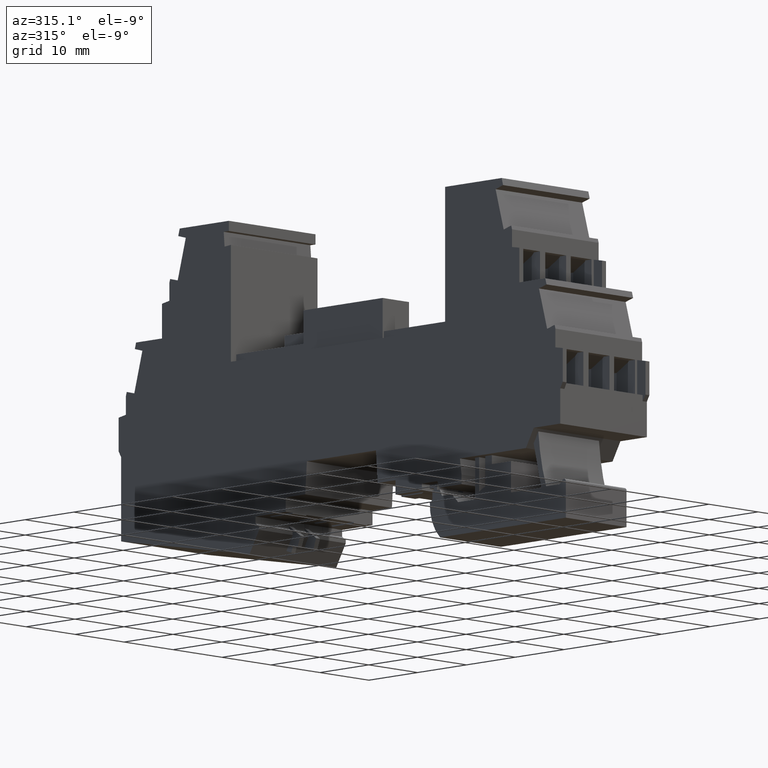
[diagram: clean part render]
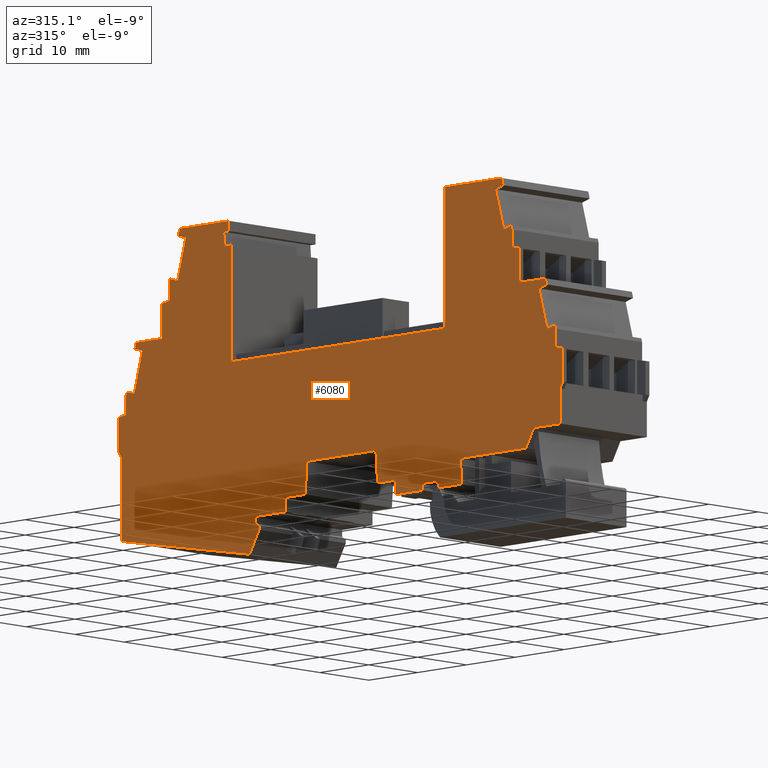
[diagram: same view with one face highlighted and labeled with its STEP entity id]
A machine part, auxiliary view. The second image highlights one B-rep face of the part: STEP entity #6080.
In plain terms, the highlighted planar face has unit normal (-1, -0, -0).
Its self-contained STEP definition (entity closure, byte-faithful):
#410=CARTESIAN_POINT('',(175.775787432851,38.0748719555399,
-1.11334144388233));
#420=DIRECTION('',(-1.13026406892651E-23,-4.41130550527766E-11,-1.));
#430=DIRECTION('',(1.,1.56403761487863E-19,-1.13026475887129E-23));
#440=AXIS2_PLACEMENT_3D('',#410,#420,#430);
#450=PLANE('',#440);
#460=CARTESIAN_POINT('',(161.653020459409,7.14242861452707,
-1.1133414425178));
#470=DIRECTION('',(1.56403753782132E-19,-1.,4.41130550527766E-11));
#480=VECTOR('',#470,1.);
#490=LINE('',#460,#480);
#500=CARTESIAN_POINT('',(161.653020459409,45.4024770615774,
-1.11334144420557));
#510=VERTEX_POINT('',#500);
#520=CARTESIAN_POINT('',(161.653020459409,28.2748719555886,
-1.11334144345002));
#530=VERTEX_POINT('',#520);
#540=EDGE_CURVE('',#510,#530,#490,.T.);
#550=ORIENTED_EDGE('',*,*,#540,.F.);
#560=CARTESIAN_POINT('',(192.854165374852,28.2748719555886,
-1.11334144345002));
#570=DIRECTION('',(-1.,2.48285112233651E-16,1.12832605431061E-23));
#580=VECTOR('',#570,1.);
#590=LINE('',#560,#580);
#600=CARTESIAN_POINT('',(117.753020248102,28.2748719555887,
-1.11334144345002));
#610=VERTEX_POINT('',#600);
#620=EDGE_CURVE('',#530,#610,#590,.T.);
#630=ORIENTED_EDGE('',*,*,#620,.F.);
#640=CARTESIAN_POINT('',(117.753020248096,7.14242861452707,
-1.11334144251781));
#650=DIRECTION('',(2.56261158126899E-13,1.,-4.41130550527766E-11));
#660=VECTOR('',#650,1.);
#670=LINE('',#640,#660);
#680=CARTESIAN_POINT('',(117.753020248107,48.9738971837701,
-1.11334144436312));
#690=VERTEX_POINT('',#680);
#700=EDGE_CURVE('',#610,#690,#670,.T.);
#710=ORIENTED_EDGE('',*,*,#700,.F.);
#720=CARTESIAN_POINT('',(192.854165374852,48.9738971837701,
-1.11334144436312));
#730=DIRECTION('',(-1.,-1.56366765235547E-19,1.12961852401773E-23));
#740=VECTOR('',#730,1.);
#750=LINE('',#720,#740);
#760=CARTESIAN_POINT('',(106.15275358152,48.9738971837701,
-1.11334144436312));
#770=VERTEX_POINT('',#760);
#780=EDGE_CURVE('',#690,#770,#750,.T.);
#790=ORIENTED_EDGE('',*,*,#780,.F.);
#800=CARTESIAN_POINT('',(98.5389253561139,21.1424286096103,
-1.11334144313539));
#810=DIRECTION('',(0.263873049965359,0.964557418457802,
-4.25495568743656E-11));
#820=VECTOR('',#810,1.);
#830=LINE('',#800,#820);
#840=CARTESIAN_POINT('',(105.859496458614,47.9019296848093,
-1.11334144431583));
#850=VERTEX_POINT('',#840);
#860=EDGE_CURVE('',#850,#770,#830,.T.);
#870=ORIENTED_EDGE('',*,*,#860,.T.);
#880=CARTESIAN_POINT('',(171.854165368061,29.8478312627266,
-1.11334144351941));
#890=DIRECTION('',(0.964557418457813,-0.26387304996532,
1.16402649562814E-11));
#900=VECTOR('',#890,1.);
#910=LINE('',#880,#900);
#920=CARTESIAN_POINT('',(107.402788328871,47.4797328046665,
-1.11334144429721));
#930=VERTEX_POINT('',#920);
#940=EDGE_CURVE('',#850,#930,#910,.T.);
#950=ORIENTED_EDGE('',*,*,#940,.F.);
#960=CARTESIAN_POINT('',(100.197717222867,21.1424286096103,
-1.11334144313539));
#970=DIRECTION('',(-0.263873049965295,-0.964557418457819,
4.25495846299392E-11));
#980=VECTOR('',#970,1.);
#990=LINE('',#960,#980);
#1000=CARTESIAN_POINT('',(105.733791287841,41.3789071329206,
-1.11334144402808));
#1010=VERTEX_POINT('',#1000);
#1020=EDGE_CURVE('',#930,#1010,#990,.T.);
#1030=ORIENTED_EDGE('',*,*,#1020,.F.);
#1040=CARTESIAN_POINT('',(171.854165368061,23.2904196675485,
-1.11334144323014));
#1050=DIRECTION('',(-0.964557418457773,0.263873049965463,
-1.16402372007138E-11));
#1060=VECTOR('',#1050,1.);
#1070=LINE('',#1040,#1060);
#1080=CARTESIAN_POINT('',(104.190499418309,41.8011040128653,
-1.1133414440467));
#1090=VERTEX_POINT('',#1080);
#1100=EDGE_CURVE('',#1010,#1090,#1070,.T.);
#1110=ORIENTED_EDGE('',*,*,#1100,.F.);
#1120=CARTESIAN_POINT('',(98.5389253568921,21.1424286096103,
-1.11334144313539));
#1130=DIRECTION('',(-0.263873049965441,-0.964557418457779,
4.25495846299438E-11));
#1140=VECTOR('',#1130,1.);
#1150=LINE('',#1120,#1140);
#1160=CARTESIAN_POINT('',(104.030253066509,41.2153420056081,
-1.11334144402086));
#1170=VERTEX_POINT('',#1160);
#1180=EDGE_CURVE('',#1090,#1170,#1150,.T.);
#1190=ORIENTED_EDGE('',*,*,#1180,.F.);
#1200=CARTESIAN_POINT('',(104.030253066509,21.1424286096103,
-1.11334144313539));
#1210=DIRECTION('',(1.56403759803267E-19,-1.,4.41130550527766E-11));
#1220=VECTOR('',#1210,1.);
#1230=LINE('',#1200,#1220);
#1240=CARTESIAN_POINT('',(104.030253066509,38.6248719555593,
-1.11334144390659));
#1250=VERTEX_POINT('',#1240);
#1260=EDGE_CURVE('',#1170,#1250,#1230,.T.);
#1270=ORIENTED_EDGE('',*,*,#1260,.F.);
#1280=CARTESIAN_POINT('',(180.754165368086,52.1533677598375,
-1.11334144450337));
#1290=DIRECTION('',(-0.984807753012208,-0.173648177666932,
7.66016047147688E-12));
#1300=VECTOR('',#1290,1.);
#1310=LINE('',#1280,#1300);
#1320=CARTESIAN_POINT('',(102.530253066631,38.3603814845181,
-1.11334144389492));
#1330=VERTEX_POINT('',#1320);
#1340=EDGE_CURVE('',#1250,#1330,#1310,.T.);
#1350=ORIENTED_EDGE('',*,*,#1340,.F.);
#1360=CARTESIAN_POINT('',(102.530253066631,36.8424286095952,
-1.11334144382796));
#1370=DIRECTION('',(1.20220234940447E-15,-1.,4.41130550527766E-11));
#1380=VECTOR('',#1370,1.);
#1390=LINE('',#1360,#1380);
#1400=CARTESIAN_POINT('',(102.530253066631,33.2748719555399,
-1.11334144367058));
#1410=VERTEX_POINT('',#1400);
#1420=EDGE_CURVE('',#1330,#1410,#1390,.T.);
#1430=ORIENTED_EDGE('',*,*,#1420,.F.);
#1440=CARTESIAN_POINT('',(171.854165368061,33.2748719555399,
-1.11334144367059));
#1450=DIRECTION('',(-1.,-1.5640375923075E-19,1.12961852401773E-23));
#1460=VECTOR('',#1450,1.);
#1470=LINE('',#1440,#1460);
#1480=CARTESIAN_POINT('',(97.2119848932176,33.2748719555399,
-1.11334144367058));
#1490=VERTEX_POINT('',#1480);
#1500=EDGE_CURVE('',#1410,#1490,#1470,.T.);
#1510=ORIENTED_EDGE('',*,*,#1500,.F.);
#1520=CARTESIAN_POINT('',(93.8929239768224,21.1424286096103,
-1.1133414431354));
#1530=DIRECTION('',(-0.26387304996536,-0.964557418457802,
4.25495846299412E-11));
#1540=VECTOR('',#1530,1.);
#1550=LINE('',#1520,#1540);
#1560=CARTESIAN_POINT('',(96.9594964593394,32.3519296846108,
-1.11334144362987));
#1570=VERTEX_POINT('',#1560);
#1580=EDGE_CURVE('',#1490,#1570,#1550,.T.);
#1590=ORIENTED_EDGE('',*,*,#1580,.F.);
#1600=CARTESIAN_POINT('',(171.854165368061,11.8630667792952,
-1.11334144272605));
#1610=DIRECTION('',(-0.964557418457813,0.26387304996532,
-1.16402649562814E-11));
#1620=VECTOR('',#1610,1.);
#1630=LINE('',#1600,#1620);
#1640=CARTESIAN_POINT('',(98.5027883288711,31.9297328046665,
-1.11334144361125));
#1650=VERTEX_POINT('',#1640);
#1660=EDGE_CURVE('',#1650,#1570,#1630,.T.);
#1670=ORIENTED_EDGE('',*,*,#1660,.T.);
#1680=CARTESIAN_POINT('',(95.5517158427942,21.1424286096103,
-1.1133414431354));
#1690=DIRECTION('',(-0.263873049965295,-0.964557418457819,
4.25495846299392E-11));
#1700=VECTOR('',#1690,1.);
#1710=LINE('',#1680,#1700);
#1720=CARTESIAN_POINT('',(96.8337912878407,25.8289071329206,
-1.11334144334212));
#1730=VERTEX_POINT('',#1720);
#1740=EDGE_CURVE('',#1650,#1730,#1710,.T.);
#1750=ORIENTED_EDGE('',*,*,#1740,.F.);
#1760=CARTESIAN_POINT('',(171.854165368061,5.30565518411572,
-1.11334144243678));
#1770=DIRECTION('',(-0.964557418457773,0.263873049965463,
-1.16402372007138E-11));
#1780=VECTOR('',#1770,1.);
#1790=LINE('',#1760,#1780);
#1800=CARTESIAN_POINT('',(95.2904994183087,26.2511040128653,
-1.11334144336074));
#1810=VERTEX_POINT('',#1800);
#1820=EDGE_CURVE('',#1730,#1810,#1790,.T.);
#1830=ORIENTED_EDGE('',*,*,#1820,.F.);
#1840=CARTESIAN_POINT('',(93.892923976822,21.1424286096103,
-1.1133414431354));
#1850=DIRECTION('',(-0.263873049965441,-0.964557418457779,
4.25495846299438E-11));
#1860=VECTOR('',#1850,1.);
#1870=LINE('',#1840,#1860);
#1880=CARTESIAN_POINT('',(95.1302530665093,25.665342005608,
-1.11334144333491));
#1890=VERTEX_POINT('',#1880);
#1900=EDGE_CURVE('',#1810,#1890,#1870,.T.);
#1910=ORIENTED_EDGE('',*,*,#1900,.F.);
#1920=CARTESIAN_POINT('',(95.1302530665093,21.1424286096103,
-1.11334144313539));
#1930=DIRECTION('',(1.56403759803267E-19,-1.,4.41130550527766E-11));
#1940=VECTOR('',#1930,1.);
#1950=LINE('',#1920,#1940);
#1960=CARTESIAN_POINT('',(95.1302530665093,22.9248719555787,
-1.11334144321401));
#1970=VERTEX_POINT('',#1960);
#1980=EDGE_CURVE('',#1890,#1970,#1950,.T.);
#1990=ORIENTED_EDGE('',*,*,#1980,.F.);
#2000=CARTESIAN_POINT('',(171.854165368061,36.4533677598525,
-1.1133414438108));
#2010=DIRECTION('',(-0.984807753012208,-0.173648177666932,
7.66016047147688E-12));
#2020=VECTOR('',#2010,1.);
#2030=LINE('',#2000,#2020);
#2040=CARTESIAN_POINT('',(93.6302530666062,22.6603814845331,
-1.11334144320235));
#2050=VERTEX_POINT('',#2040);
#2060=EDGE_CURVE('',#1970,#2050,#2030,.T.);
#2070=ORIENTED_EDGE('',*,*,#2060,.F.);
#2080=CARTESIAN_POINT('',(93.6302530666062,21.1424286096103,
-1.1133414431354));
#2090=DIRECTION('',(1.20220234940447E-15,-1.,4.41130550527766E-11));
#2100=VECTOR('',#2090,1.);
#2110=LINE('',#2080,#2100);
#2120=CARTESIAN_POINT('',(93.6302530666062,17.7248719555886,
-1.11334144298463));
#2130=VERTEX_POINT('',#2120);
#2140=EDGE_CURVE('',#2050,#2130,#2110,.T.);
#2150=ORIENTED_EDGE('',*,*,#2140,.F.);
#2160=CARTESIAN_POINT('',(91.657125812436,21.1424286096103,
-1.11334144313539));
#2170=DIRECTION('',(0.500000000000001,-0.866025403784438,
3.82030794971771E-11));
#2180=VECTOR('',#2170,1.);
#2190=LINE('',#2160,#2180);
#2200=CARTESIAN_POINT('',(94.1530202869944,16.8194125693447,
-1.11334144294469));
#2210=VERTEX_POINT('',#2200);
#2220=EDGE_CURVE('',#2130,#2210,#2190,.T.);
#2230=ORIENTED_EDGE('',*,*,#2220,.F.);
#2240=CARTESIAN_POINT('',(94.1530202869944,21.1424286096103,
-1.11334144313539));
#2250=DIRECTION('',(1.56403759828511E-19,-1.,4.41130550527766E-11));
#2260=VECTOR('',#2250,1.);
#2270=LINE('',#2240,#2260);
#2280=CARTESIAN_POINT('',(94.1530202869944,11.6453465829026,
-1.11334144271644));
#2290=VERTEX_POINT('',#2280);
#2300=EDGE_CURVE('',#2210,#2290,#2270,.T.);
#2310=ORIENTED_EDGE('',*,*,#2300,.F.);
#2320=CARTESIAN_POINT('',(171.854165368061,11.6453465829225,
-1.11334144271645));
#2330=DIRECTION('',(-1.,-2.56158420807289E-13,2.26052951774257E-23));
#2340=VECTOR('',#2330,1.);
#2350=LINE('',#2320,#2340);
#2360=CARTESIAN_POINT('',(99.5724653276216,11.645346582904,
-1.11334144271644));
#2370=VERTEX_POINT('',#2360);
#2380=EDGE_CURVE('',#2370,#2290,#2350,.T.);
#2390=ORIENTED_EDGE('',*,*,#2380,.T.);
#2400=CARTESIAN_POINT('',(94.0893224629868,21.1424286096103,
-1.11334144313539));
#2410=DIRECTION('',(0.5,-0.866025403784439,3.82030794971771E-11));
#2420=VECTOR('',#2410,1.);
#2430=LINE('',#2400,#2420);
#2440=CARTESIAN_POINT('',(101.18635916368,8.85000046082788,
-1.11334144259313));
#2450=VERTEX_POINT('',#2440);
#2460=EDGE_CURVE('',#2370,#2450,#2430,.T.);
#2470=ORIENTED_EDGE('',*,*,#2460,.F.);
#2480=CARTESIAN_POINT('',(171.854165368061,8.85000046085151,
-1.11334144259312));
#2490=DIRECTION('',(1.,2.56108516335247E-13,-2.25988328288901E-23));
#2500=VECTOR('',#2490,1.);
#2510=LINE('',#2480,#2500);
#2520=CARTESIAN_POINT('',(114.713353248509,8.85000046083134,
-1.11334144259313));
#2530=VERTEX_POINT('',#2520);
#2540=EDGE_CURVE('',#2450,#2530,#2510,.T.);
#2550=ORIENTED_EDGE('',*,*,#2540,.F.);
#2560=CARTESIAN_POINT('',(116.440941361057,21.1424286096103,
-1.11334144313539));
#2570=DIRECTION('',(-0.139173100960066,-0.99026806874157,
4.3683736822329E-11));
#2580=VECTOR('',#2570,1.);
#2590=LINE('',#2560,#2580);
#2600=CARTESIAN_POINT('',(114.37605521281,6.45000023019994,
-1.11334144248726));
#2610=VERTEX_POINT('',#2600);
#2620=EDGE_CURVE('',#2530,#2610,#2590,.T.);
#2630=ORIENTED_EDGE('',*,*,#2620,.F.);
#2640=CARTESIAN_POINT('',(114.376055212133,41.9996467296904,
-1.11334144274779));
#2650=DIRECTION('',(-1.24743686456667E-16,-1.,4.37046590461377E-11));
#2660=VECTOR('',#2650,1.);
#2670=LINE('',#2640,#2660);
#2680=CARTESIAN_POINT('',(114.37605521281,5.04534658290805,
-1.11334144242529));
#2690=VERTEX_POINT('',#2680);
#2700=EDGE_CURVE('',#2610,#2690,#2670,.T.);
#2710=ORIENTED_EDGE('',*,*,#2700,.F.);
#2720=CARTESIAN_POINT('',(171.854165368061,5.04534658290804,
-1.1133414424253));
#2730=DIRECTION('',(-1.,5.53547833219056E-17,1.13026475887129E-23));
#2740=VECTOR('',#2730,1.);
#2750=LINE('',#2720,#2740);
#2760=CARTESIAN_POINT('',(118.904710953723,5.04534658290804,
-1.11334144242529));
#2770=VERTEX_POINT('',#2760);
#2780=EDGE_CURVE('',#2770,#2690,#2750,.T.);
#2790=ORIENTED_EDGE('',*,*,#2780,.T.);
#2800=CARTESIAN_POINT('',(126.334133427613,21.1424286096103,
-1.11334144313539));
#2810=DIRECTION('',(-0.41905817746306,-0.907959384499846,
4.0052859338571E-11));
#2820=VECTOR('',#2810,1.);
#2830=LINE('',#2800,#2820);
#2840=CARTESIAN_POINT('',(119.366249415262,6.04534658290549,
-1.11334144246941));
#2850=VERTEX_POINT('',#2840);
#2860=EDGE_CURVE('',#2850,#2770,#2830,.T.);
#2870=ORIENTED_EDGE('',*,*,#2860,.T.);
#2880=CARTESIAN_POINT('',(171.854165368061,6.04534658290549,
-1.11334144246941));
#2890=DIRECTION('',(-1.,-1.56367909352249E-19,1.13026475887129E-23));
#2900=VECTOR('',#2890,1.);
#2910=LINE('',#2880,#2900);
#2920=CARTESIAN_POINT('',(122.506786005892,6.04534658290549,
-1.11334144246941));
#2930=VERTEX_POINT('',#2920);
#2940=EDGE_CURVE('',#2930,#2850,#2910,.T.);
#2950=ORIENTED_EDGE('',*,*,#2940,.T.);
#2960=CARTESIAN_POINT('',(122.506786005892,41.9996467296904,
-1.11334144310416));
#2970=DIRECTION('',(1.56403813663469E-19,-1.,4.37046590461377E-11));
#2980=VECTOR('',#2970,1.);
#2990=LINE('',#2960,#2980);
#3000=CARTESIAN_POINT('',(122.506786005892,5.04534658290176,
-1.11334144242529));
#3010=VERTEX_POINT('',#3000);
#3020=EDGE_CURVE('',#2930,#3010,#2990,.T.);
#3030=ORIENTED_EDGE('',*,*,#3020,.F.);
#3040=CARTESIAN_POINT('',(171.854165368061,5.04534658290175,
-1.1133414424253));
#3050=DIRECTION('',(1.,-5.53547474170971E-17,-1.13026475887129E-23));
#3060=VECTOR('',#3050,1.);
#3070=LINE('',#3040,#3060);
#3080=CARTESIAN_POINT('',(127.903020249868,5.04534658290176,
-1.11334144242529));
#3090=VERTEX_POINT('',#3080);
#3100=EDGE_CURVE('',#3010,#3090,#3070,.T.);
#3110=ORIENTED_EDGE('',*,*,#3100,.F.);
#3120=CARTESIAN_POINT('',(127.90302024986,7.14242861452707,
-1.11334144251781));
#3130=DIRECTION('',(-1.56385859539037E-19,1.,-4.41130550527766E-11));
#3140=VECTOR('',#3130,1.);
#3150=LINE('',#3120,#3140);
#3160=CARTESIAN_POINT('',(127.90302024986,7.14534658290805,
-1.11334144251793));
#3170=VERTEX_POINT('',#3160);
#3180=EDGE_CURVE('',#3090,#3170,#3150,.T.);
#3190=ORIENTED_EDGE('',*,*,#3180,.F.);
#3200=CARTESIAN_POINT('',(192.854165374852,7.14534658290806,
-1.11334144251793));
#3210=DIRECTION('',(1.,1.56367909071237E-19,-1.12961852401773E-23));
#3220=VECTOR('',#3210,1.);
#3230=LINE('',#3200,#3220);
#3240=CARTESIAN_POINT('',(131.587251085768,7.14534658290805,
-1.11334144251793));
#3250=VERTEX_POINT('',#3240);
#3260=EDGE_CURVE('',#3170,#3250,#3230,.T.);
#3270=ORIENTED_EDGE('',*,*,#3260,.F.);
#3280=CARTESIAN_POINT('',(131.587047041542,7.14242861452707,
-1.1133414425178));
#3290=DIRECTION('',(0.0697564737442381,0.997564050259816,
-4.40055896282992E-11));
#3300=VECTOR('',#3290,1.);
#3310=LINE('',#3280,#3300);
#3320=CARTESIAN_POINT('',(131.923225181691,11.9499999995831,
-1.11334144272988));
#3330=VERTEX_POINT('',#3320);
#3340=EDGE_CURVE('',#3250,#3330,#3310,.T.);
#3350=ORIENTED_EDGE('',*,*,#3340,.F.);
#3360=CARTESIAN_POINT('',(192.854165374852,11.9499999995832,
-1.11334144272988));
#3370=DIRECTION('',(1.,3.21694825271889E-17,-1.12961852401773E-23));
#3380=VECTOR('',#3370,1.);
#3390=LINE('',#3360,#3380);
#3400=CARTESIAN_POINT('',(146.082082747328,11.9499999995831,
-1.11334144272988));
#3410=VERTEX_POINT('',#3400);
#3420=EDGE_CURVE('',#3330,#3410,#3390,.T.);
#3430=ORIENTED_EDGE('',*,*,#3420,.F.);
#3440=CARTESIAN_POINT('',(146.418260887475,7.14242861452707,
-1.1133414425178));
#3450=DIRECTION('',(0.0697564737441256,-0.997564050259824,
4.40056032211588E-11));
#3460=VECTOR('',#3450,1.);
#3470=LINE('',#3440,#3460);
#3480=CARTESIAN_POINT('',(146.41805684325,7.14534658290082,
-1.11334144251793));
#3490=VERTEX_POINT('',#3480);
#3500=EDGE_CURVE('',#3410,#3490,#3470,.T.);
#3510=ORIENTED_EDGE('',*,*,#3500,.F.);
#3520=CARTESIAN_POINT('',(192.854165374852,7.14534658290805,
-1.11334144251793));
#3530=DIRECTION('',(1.,1.56367909071237E-19,-1.12961852401773E-23));
#3540=VECTOR('',#3530,1.);
#3550=LINE('',#3520,#3540);
#3560=CARTESIAN_POINT('',(150.403020265991,7.14534658290082,
-1.11334144251793));
#3570=VERTEX_POINT('',#3560);
#3580=EDGE_CURVE('',#3490,#3570,#3550,.T.);
#3590=ORIENTED_EDGE('',*,*,#3580,.F.);
#3600=CARTESIAN_POINT('',(150.403020249868,7.14242861452707,
-1.1133414425178));
#3610=DIRECTION('',(1.56385859539037E-19,-1.,4.41130550527766E-11));
#3620=VECTOR('',#3610,1.);
#3630=LINE('',#3600,#3620);
#3640=CARTESIAN_POINT('',(150.403020265991,5.0453465829106,
-1.11334144242529));
#3650=VERTEX_POINT('',#3640);
#3660=EDGE_CURVE('',#3570,#3650,#3630,.T.);
#3670=ORIENTED_EDGE('',*,*,#3660,.F.);
#3680=CARTESIAN_POINT('',(171.854165368061,5.0453465829106,
-1.1133414424253));
#3690=DIRECTION('',(-1.,-1.5638586175648E-19,1.13026475887129E-23));
#3700=VECTOR('',#3690,1.);
#3710=LINE('',#3680,#3700);
#3720=CARTESIAN_POINT('',(156.626055211889,5.0453465829106,
-1.11334144242529));
#3730=VERTEX_POINT('',#3720);
#3740=EDGE_CURVE('',#3730,#3650,#3710,.T.);
#3750=ORIENTED_EDGE('',*,*,#3740,.T.);
#3760=CARTESIAN_POINT('',(156.626055211889,21.1424286096103,
-1.11334144368803));
#3770=DIRECTION('',(1.24743704410233E-16,1.,-4.37046590461377E-11));
#3780=VECTOR('',#3770,1.);
#3790=LINE('',#3760,#3780);
#3800=CARTESIAN_POINT('',(156.626055211889,4.05000023020791,
-1.11334144238139));
#3810=VERTEX_POINT('',#3800);
#3820=EDGE_CURVE('',#3810,#3730,#3790,.T.);
#3830=ORIENTED_EDGE('',*,*,#3820,.T.);
#3840=CARTESIAN_POINT('',(171.854165368061,14.7128377542489,
-1.11334144285176));
#3850=DIRECTION('',(0.819152044288959,0.573576436351093,
-2.53022292641073E-11));
#3860=VECTOR('',#3850,1.);
#3870=LINE('',#3840,#3860);
#3880=CARTESIAN_POINT('',(155.871438857493,3.52161217040324,
-1.11334144235808));
#3890=VERTEX_POINT('',#3880);
#3900=EDGE_CURVE('',#3890,#3810,#3870,.T.);
#3910=ORIENTED_EDGE('',*,*,#3900,.T.);
#3920=CARTESIAN_POINT('',(155.602807136115,41.9996467296904,
-1.11334144455473));
#3930=DIRECTION('',(0.00698126029796187,-0.999975630705395,
4.339760989563E-11));
#3940=VECTOR('',#3930,1.);
#3950=LINE('',#3920,#3940);
#3960=CARTESIAN_POINT('',(155.874971805452,3.0155628737191,
-1.11334144233576));
#3970=VERTEX_POINT('',#3960);
#3980=EDGE_CURVE('',#3890,#3970,#3950,.T.);
#3990=ORIENTED_EDGE('',*,*,#3980,.F.);
#4000=CARTESIAN_POINT('',(145.320669820589,21.1424286096103,
-1.11334144313539));
#4010=DIRECTION('',(-0.503170012398067,0.86418744414816,
-3.81220352826189E-11));
#4020=VECTOR('',#4010,1.);
#4030=LINE('',#4000,#4020);
#4040=CARTESIAN_POINT('',(157.833683408647,-0.348496852577259,
-1.11334144218735));
#4050=VERTEX_POINT('',#4040);
#4060=EDGE_CURVE('',#4050,#3970,#4030,.T.);
#4070=ORIENTED_EDGE('',*,*,#4060,.T.);
#4080=CARTESIAN_POINT('',(171.854165368061,2.22474311464276,
-1.11334144230087));
#4090=DIRECTION('',(-0.983571470813386,-0.18051914525056,
7.96325051898188E-12));
#4100=VECTOR('',#4090,1.);
#4110=LINE('',#4080,#4100);
#4120=CARTESIAN_POINT('',(184.15302021237,4.48200537766807,
-1.11334144240044));
#4130=VERTEX_POINT('',#4120);
#4140=EDGE_CURVE('',#4130,#4050,#4110,.T.);
#4150=ORIENTED_EDGE('',*,*,#4140,.T.);
#4160=CARTESIAN_POINT('',(184.15302021249,21.1424286096103,
-1.11334144313539));
#4170=DIRECTION('',(-1.20220234929685E-15,1.,-4.41130550527766E-11));
#4180=VECTOR('',#4170,1.);
#4190=LINE('',#4160,#4180);
#4200=CARTESIAN_POINT('',(184.153020565261,16.8194123656006,
-1.11334144294469));
#4210=VERTEX_POINT('',#4200);
#4220=EDGE_CURVE('',#4130,#4210,#4190,.T.);
#4230=ORIENTED_EDGE('',*,*,#4220,.F.);
#4240=CARTESIAN_POINT('',(186.648915157451,21.1424286096103,
-1.11334144313539));
#4250=DIRECTION('',(-0.500000000000001,-0.866025403784438,
3.82030794971884E-11));
#4260=VECTOR('',#4250,1.);
#4270=LINE('',#4240,#4260);
#4280=CARTESIAN_POINT('',(184.675787903281,17.7248719555886,
-1.11334144298463));
#4290=VERTEX_POINT('',#4280);
#4300=EDGE_CURVE('',#4290,#4210,#4270,.T.);
#4310=ORIENTED_EDGE('',*,*,#4300,.T.);
#4320=CARTESIAN_POINT('',(184.675787903281,21.1424286096103,
-1.11334144313539));
#4330=DIRECTION('',(-1.20188954188481E-15,-1.,4.41130550527766E-11));
#4340=VECTOR('',#4330,1.);
#4350=LINE('',#4320,#4340);
#4360=CARTESIAN_POINT('',(184.675787903281,22.6603814845331,
-1.11334144320235));
#4370=VERTEX_POINT('',#4360);
#4380=EDGE_CURVE('',#4370,#4290,#4350,.T.);
#4390=ORIENTED_EDGE('',*,*,#4380,.T.);
#4400=CARTESIAN_POINT('',(106.451875601826,36.4533677598525,
-1.11334144381079));
#4410=DIRECTION('',(0.984807753012208,-0.173648177666932,
7.66016047145462E-12));
#4420=VECTOR('',#4410,1.);
#4430=LINE('',#4400,#4420);
#4440=CARTESIAN_POINT('',(183.175787903378,22.9248719555787,
-1.11334144321402));
#4450=VERTEX_POINT('',#4440);
#4460=EDGE_CURVE('',#4450,#4370,#4430,.T.);
#4470=ORIENTED_EDGE('',*,*,#4460,.T.);
#4480=CARTESIAN_POINT('',(183.175787903378,21.1424286096103,
-1.11334144313539));
#4490=DIRECTION('',(1.56403759853755E-19,-1.,4.41130550527766E-11));
#4500=VECTOR('',#4490,1.);
#4510=LINE('',#4480,#4500);
#4520=CARTESIAN_POINT('',(183.175787903378,25.665342005608,
-1.11334144333491));
#4530=VERTEX_POINT('',#4520);
#4540=EDGE_CURVE('',#4530,#4450,#4510,.T.);
#4550=ORIENTED_EDGE('',*,*,#4540,.T.);
#4560=CARTESIAN_POINT('',(184.413116993065,21.1424286096103,
-1.11334144313539));
#4570=DIRECTION('',(0.263873049965441,-0.964557418457779,
4.25495846299379E-11));
#4580=VECTOR('',#4570,1.);
#4590=LINE('',#4560,#4580);
#4600=CARTESIAN_POINT('',(183.015541551579,26.2511040128653,
-1.11334144336075));
#4610=VERTEX_POINT('',#4600);
#4620=EDGE_CURVE('',#4610,#4530,#4590,.T.);
#4630=ORIENTED_EDGE('',*,*,#4620,.T.);
#4640=CARTESIAN_POINT('',(106.451875601826,5.30565518411572,
-1.11334144243678));
#4650=DIRECTION('',(0.964557418457773,0.263873049965463,
-1.16402372007356E-11));
#4660=VECTOR('',#4650,1.);
#4670=LINE('',#4640,#4660);
#4680=CARTESIAN_POINT('',(181.472249682046,25.8289071329206,
-1.11334144334212));
#4690=VERTEX_POINT('',#4680);
#4700=EDGE_CURVE('',#4690,#4610,#4670,.T.);
#4710=ORIENTED_EDGE('',*,*,#4700,.T.);
#4720=CARTESIAN_POINT('',(182.754325127093,21.1424286096103,
-1.11334144313539));
#4730=DIRECTION('',(0.263873049965295,-0.964557418457819,
4.25495846299332E-11));
#4740=VECTOR('',#4730,1.);
#4750=LINE('',#4720,#4740);
#4760=CARTESIAN_POINT('',(179.803252641016,31.9297328046665,
-1.11334144361125));
#4770=VERTEX_POINT('',#4760);
#4780=EDGE_CURVE('',#4770,#4690,#4750,.T.);
#4790=ORIENTED_EDGE('',*,*,#4780,.T.);
#4800=CARTESIAN_POINT('',(106.451875601826,11.8630667792952,
-1.11334144272604));
#4810=DIRECTION('',(0.964557418457813,0.26387304996532,
-1.16402649563032E-11));
#4820=VECTOR('',#4810,1.);
#4830=LINE('',#4800,#4820);
#4840=CARTESIAN_POINT('',(181.346544510548,32.3519296846108,
-1.11334144362987));
#4850=VERTEX_POINT('',#4840);
#4860=EDGE_CURVE('',#4770,#4850,#4830,.T.);
#4870=ORIENTED_EDGE('',*,*,#4860,.F.);
#4880=CARTESIAN_POINT('',(184.413116993065,21.1424286096103,
-1.11334144313539));
#4890=DIRECTION('',(0.26387304996536,-0.964557418457802,
4.25495846299353E-11));
#4900=VECTOR('',#4890,1.);
#4910=LINE('',#4880,#4900);
#4920=CARTESIAN_POINT('',(181.09405607667,33.2748719555399,
-1.11334144367058));
#4930=VERTEX_POINT('',#4920);
#4940=EDGE_CURVE('',#4930,#4850,#4910,.T.);
#4950=ORIENTED_EDGE('',*,*,#4940,.T.);
#4960=CARTESIAN_POINT('',(106.451875601826,33.2748719555399,
-1.11334144367059));
#4970=DIRECTION('',(1.,1.56403763744976E-19,-1.13091099372484E-23));
#4980=VECTOR('',#4970,1.);
#4990=LINE('',#4960,#4980);
#5000=CARTESIAN_POINT('',(175.775787903256,33.2748719555399,
-1.11334144367058));
#5010=VERTEX_POINT('',#5000);
#5020=EDGE_CURVE('',#5010,#4930,#4990,.T.);
#5030=ORIENTED_EDGE('',*,*,#5020,.T.);
#5040=CARTESIAN_POINT('',(175.775787903256,36.8424286095952,
-1.11334144382795));
#5050=DIRECTION('',(-1.20188954188481E-15,-1.,4.41130550527766E-11));
#5060=VECTOR('',#5050,1.);
#5070=LINE('',#5040,#5060);
#5080=CARTESIAN_POINT('',(175.775787903256,38.3603814845181,
-1.11334144389492));
#5090=VERTEX_POINT('',#5080);
#5100=EDGE_CURVE('',#5090,#5010,#5070,.T.);
#5110=ORIENTED_EDGE('',*,*,#5100,.T.);
#5120=CARTESIAN_POINT('',(97.5518756018013,52.1533677598375,
-1.11334144450337));
#5130=DIRECTION('',(0.984807753012208,-0.173648177666932,
7.66016047145462E-12));
#5140=VECTOR('',#5130,1.);
#5150=LINE('',#5120,#5140);
#5160=CARTESIAN_POINT('',(174.275787903378,38.6248719555593,
-1.11334144390659));
#5170=VERTEX_POINT('',#5160);
#5180=EDGE_CURVE('',#5170,#5090,#5150,.T.);
#5190=ORIENTED_EDGE('',*,*,#5180,.T.);
#5200=CARTESIAN_POINT('',(174.275787903378,21.1424286096103,
-1.11334144313538));
#5210=DIRECTION('',(1.56403759853755E-19,-1.,4.41130550527766E-11));
#5220=VECTOR('',#5210,1.);
#5230=LINE('',#5200,#5220);
#5240=CARTESIAN_POINT('',(174.275787903378,41.2153420056081,
-1.11334144402086));
#5250=VERTEX_POINT('',#5240);
#5260=EDGE_CURVE('',#5250,#5170,#5230,.T.);
#5270=ORIENTED_EDGE('',*,*,#5260,.T.);
#5280=CARTESIAN_POINT('',(179.767115612995,21.1424286096103,
-1.11334144313539));
#5290=DIRECTION('',(0.263873049965441,-0.964557418457779,
4.25495846299379E-11));
#5300=VECTOR('',#5290,1.);
#5310=LINE('',#5280,#5300);
#5320=CARTESIAN_POINT('',(174.115541551579,41.8011040128653,
-1.1133414440467));
#5330=VERTEX_POINT('',#5320);
#5340=EDGE_CURVE('',#5330,#5250,#5310,.T.);
#5350=ORIENTED_EDGE('',*,*,#5340,.T.);
#5360=CARTESIAN_POINT('',(106.451875601826,23.2904196675485,
-1.11334144323014));
#5370=DIRECTION('',(0.964557418457773,0.263873049965463,
-1.16402372007356E-11));
#5380=VECTOR('',#5370,1.);
#5390=LINE('',#5360,#5380);
#5400=CARTESIAN_POINT('',(172.572249682046,41.3789071329206,
-1.11334144402808));
#5410=VERTEX_POINT('',#5400);
#5420=EDGE_CURVE('',#5410,#5330,#5390,.T.);
#5430=ORIENTED_EDGE('',*,*,#5420,.T.);
#5440=CARTESIAN_POINT('',(178.10832374702,21.1424286096103,
-1.11334144313539));
#5450=DIRECTION('',(0.263873049965295,-0.964557418457819,
4.25495846299332E-11));
#5460=VECTOR('',#5450,1.);
#5470=LINE('',#5440,#5460);
#5480=CARTESIAN_POINT('',(170.903252641016,47.4797328046665,
-1.1133414442972));
#5490=VERTEX_POINT('',#5480);
#5500=EDGE_CURVE('',#5490,#5410,#5470,.T.);
#5510=ORIENTED_EDGE('',*,*,#5500,.T.);
#5520=CARTESIAN_POINT('',(106.451875601826,29.8478312627266,
-1.1133414435194));
#5530=DIRECTION('',(-0.964557418457813,-0.26387304996532,
1.16402649563032E-11));
#5540=VECTOR('',#5530,1.);
#5550=LINE('',#5520,#5540);
#5560=CARTESIAN_POINT('',(172.446544511273,47.9019296848093,
-1.11334144431583));
#5570=VERTEX_POINT('',#5560);
#5580=EDGE_CURVE('',#5570,#5490,#5550,.T.);
#5590=ORIENTED_EDGE('',*,*,#5580,.T.);
#5600=CARTESIAN_POINT('',(179.767115613773,21.1424286096103,
-1.11334144313538));
#5610=DIRECTION('',(-0.263873049965359,0.964557418457802,
-4.25495568743597E-11));
#5620=VECTOR('',#5610,1.);
#5630=LINE('',#5600,#5620);
#5640=CARTESIAN_POINT('',(172.153287388367,48.9738971837702,
-1.11334144436312));
#5650=VERTEX_POINT('',#5640);
#5660=EDGE_CURVE('',#5570,#5650,#5630,.T.);
#5670=ORIENTED_EDGE('',*,*,#5660,.F.);
#5680=CARTESIAN_POINT('',(171.854165368061,48.9738971837701,
-1.11334144436312));
#5690=DIRECTION('',(-1.,-1.56440756176116E-19,1.12961852401773E-23));
#5700=VECTOR('',#5690,1.);
#5710=LINE('',#5680,#5700);
#5720=CARTESIAN_POINT('',(162.074778126863,48.9738971837701,
-1.11334144436312));
#5730=VERTEX_POINT('',#5720);
#5740=EDGE_CURVE('',#5650,#5730,#5710,.T.);
#5750=ORIENTED_EDGE('',*,*,#5740,.F.);
#5760=CARTESIAN_POINT('',(162.074778126863,21.1424286096103,
-1.11334144313539));
#5770=DIRECTION('',(-1.56403759828511E-19,1.,-4.41130550527766E-11));
#5780=VECTOR('',#5770,1.);
#5790=LINE('',#5760,#5780);
#5800=CARTESIAN_POINT('',(162.074778126863,47.4856505182482,
-1.11334144429747));
#5810=VERTEX_POINT('',#5800);
#5820=EDGE_CURVE('',#5810,#5730,#5790,.T.);
#5830=ORIENTED_EDGE('',*,*,#5820,.T.);
#5840=CARTESIAN_POINT('',(171.854165368061,47.4856505182482,
-1.11334144429746));
#5850=DIRECTION('',(-1.,-2.48597901802659E-16,1.13091099372484E-23));
#5860=VECTOR('',#5850,1.);
#5870=LINE('',#5840,#5860);
#5880=CARTESIAN_POINT('',(163.134058710839,47.4856505182482,
-1.11334144429747));
#5890=VERTEX_POINT('',#5880);
#5900=EDGE_CURVE('',#5890,#5810,#5870,.T.);
#5910=ORIENTED_EDGE('',*,*,#5900,.T.);
#5920=CARTESIAN_POINT('',(160.972880394512,21.1424286096103,
-1.11334144387854));
#5930=DIRECTION('',(-0.0817645613447245,-0.996651672605883,
4.7142009089488E-11));
#5940=VECTOR('',#5930,1.);
#5950=LINE('',#5920,#5940);
#5960=CARTESIAN_POINT('',(162.954397869224,45.2957130275805,
-1.11334144420086));
#5970=VERTEX_POINT('',#5960);
#5980=EDGE_CURVE('',#5890,#5970,#5950,.T.);
#5990=ORIENTED_EDGE('',*,*,#5980,.F.);
#6000=CARTESIAN_POINT('',(171.854165368061,44.5655827266804,
-1.11334144416865));
#6010=DIRECTION('',(0.996651672605884,-0.0817645613447162,
3.60688677132283E-12));
#6020=VECTOR('',#6010,1.);
#6030=LINE('',#6000,#6020);
#6040=EDGE_CURVE('',#510,#5970,#6030,.T.);
#6050=ORIENTED_EDGE('',*,*,#6040,.T.);
#6060=EDGE_LOOP('',(#6050,#5990,#5910,#5830,#5750,#5670,#5590,#5510,
#5430,#5350,#5270,#5190,#5110,#5030,#4950,#4870,#4790,#4710,#4630,#4550,
#4470,#4390,#4310,#4230,#4150,#4070,#3990,#3910,#3830,#3750,#3670,#3590,
#3510,#3430,#3350,#3270,#3190,#3110,#3030,#2950,#2870,#2790,#2710,#2630,
#2550,#2470,#2390,#2310,#2230,#2150,#2070,#1990,#1910,#1830,#1750,#1670,
#1590,#1510,#1430,#1350,#1270,#1190,#1110,#1030,#950,#870,#790,#710,#630
,#550));
#6070=FACE_OUTER_BOUND('',#6060,.T.);
#6080=ADVANCED_FACE('',(#6070),#450,.T.);